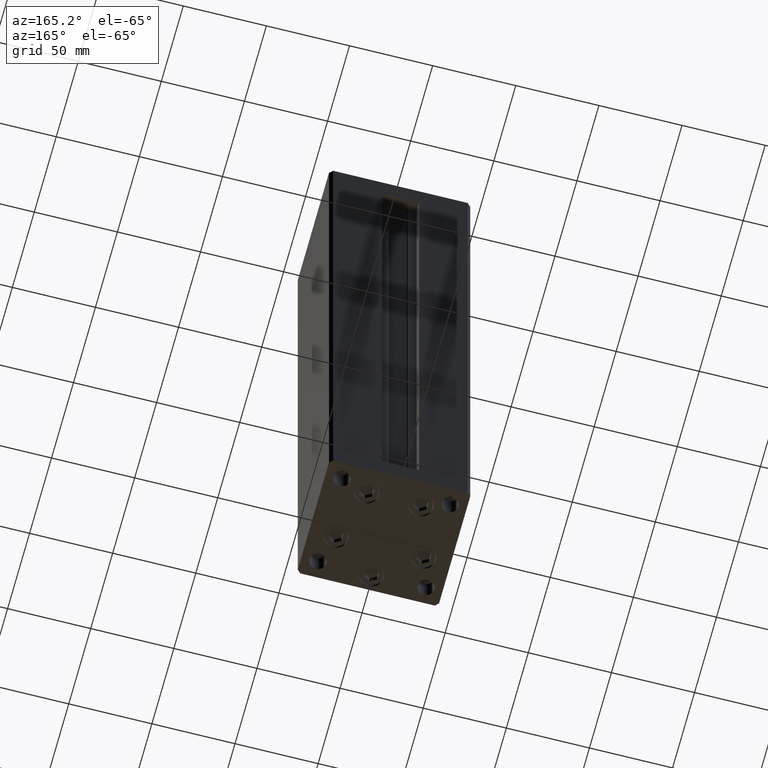
[diagram: clean part render]
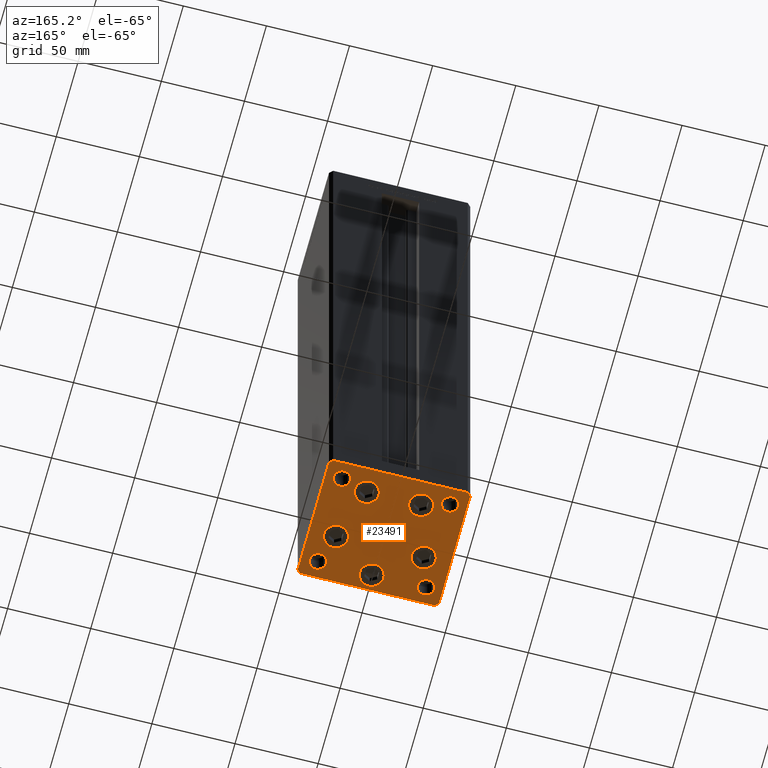
[diagram: same view with one face highlighted and labeled with its STEP entity id]
A machine part, auxiliary view. The second image highlights one B-rep face of the part: STEP entity #23491.
In plain terms, the highlighted planar face has unit normal (0, 0, -1).
Its self-contained STEP definition (entity closure, byte-faithful):
#327 = VECTOR ( 'NONE', #9192, 1000.000000000000000 ) ;
#392 = CIRCLE ( 'NONE', #16304, 4.999999999999997335 ) ;
#402 = AXIS2_PLACEMENT_3D ( 'NONE', #30157, #41130, #9442 ) ;
#839 = EDGE_CURVE ( 'NONE', #40751, #37716, #1512, .T. ) ;
#855 = VECTOR ( 'NONE', #34443, 1000.000000000000000 ) ;
#1003 = CARTESIAN_POINT ( 'NONE',  ( -32.50000000000000000, -27.49999999999999645, 0.000000000000000000 ) ) ;
#1017 = ORIENTED_EDGE ( 'NONE', *, *, #13226, .T. ) ;
#1036 = DIRECTION ( 'NONE',  ( 1.000000000000000000, 0.000000000000000000, 0.000000000000000000 ) ) ;
#1117 = ORIENTED_EDGE ( 'NONE', *, *, #31436, .T. ) ;
#1277 = VERTEX_POINT ( 'NONE', #21815 ) ;
#1512 = CIRCLE ( 'NONE', #30825, 5.000000000000000888 ) ;
#1696 = DIRECTION ( 'NONE',  ( 0.000000000000000000, -0.000000000000000000, -1.000000000000000000 ) ) ;
#2027 = CARTESIAN_POINT ( 'NONE',  ( -32.50000000000000000, 27.50000000000000355, 0.000000000000000000 ) ) ;
#2234 = CARTESIAN_POINT ( 'NONE',  ( 42.49999999999992895, 35.50000000000000000, 0.000000000000000000 ) ) ;
#2564 = FACE_OUTER_BOUND ( 'NONE', #41429, .T. ) ;
#2819 = CARTESIAN_POINT ( 'NONE',  ( 0.000000000000000000, 0.000000000000000000, 0.000000000000000000 ) ) ;
#2906 = ORIENTED_EDGE ( 'NONE', *, *, #26233, .T. ) ;
#3412 = VERTEX_POINT ( 'NONE', #48244 ) ;
#3690 = LINE ( 'NONE', #48712, #25516 ) ;
#3992 = EDGE_CURVE ( 'NONE', #11397, #3412, #21603, .T. ) ;
#4563 = CIRCLE ( 'NONE', #45583, 5.000000000000000888 ) ;
#4622 = DIRECTION ( 'NONE',  ( 0.000000000000000000, -0.000000000000000000, -1.000000000000000000 ) ) ;
#4690 = ORIENTED_EDGE ( 'NONE', *, *, #21002, .T. ) ;
#4740 = CARTESIAN_POINT ( 'NONE',  ( 40.49999999999991473, 37.50000000000000711, 0.000000000000000000 ) ) ;
#4854 = CARTESIAN_POINT ( 'NONE',  ( -9.072913342905431833, 22.74999999999999645, 0.000000000000000000 ) ) ;
#4976 = DIRECTION ( 'NONE',  ( -0.000000000000000000, 0.000000000000000000, 1.000000000000000000 ) ) ;
#5135 = CARTESIAN_POINT ( 'NONE',  ( 42.50000000000000711, -35.50000000000000000, 0.000000000000000000 ) ) ;
#5417 = EDGE_CURVE ( 'NONE', #22547, #46434, #42538, .T. ) ;
#5546 = CIRCLE ( 'NONE', #14755, 4.999999999999997335 ) ;
#5634 = DIRECTION ( 'NONE',  ( -0.7071067811865463515, -0.7071067811865487940, 0.000000000000000000 ) ) ;
#5640 = EDGE_CURVE ( 'NONE', #11532, #23768, #15746, .T. ) ;
#6636 = ORIENTED_EDGE ( 'NONE', *, *, #40804, .T. ) ;
#7062 = DIRECTION ( 'NONE',  ( 1.000000000000000000, 0.000000000000000000, 0.000000000000000000 ) ) ;
#7521 = DIRECTION ( 'NONE',  ( 1.000000000000000000, 0.000000000000000000, 0.000000000000000000 ) ) ;
#7828 = EDGE_LOOP ( 'NONE', ( #4690, #44346 ) ) ;
#7846 = DIRECTION ( 'NONE',  ( 0.000000000000000000, -0.000000000000000000, -1.000000000000000000 ) ) ;
#7997 = AXIS2_PLACEMENT_3D ( 'NONE', #25166, #49257, #9441 ) ;
#8259 = VECTOR ( 'NONE', #27490, 1000.000000000000000 ) ;
#8351 = CARTESIAN_POINT ( 'NONE',  ( 40.50000000000000000, -37.50000000000000711, 0.000000000000000000 ) ) ;
#8777 = CARTESIAN_POINT ( 'NONE',  ( -40.50000000000000711, 37.49999999999997868, 0.000000000000000000 ) ) ;
#9192 = DIRECTION ( 'NONE',  ( -1.000000000000000000, -3.426614273534436165E-16, 0.000000000000000000 ) ) ;
#9237 = AXIS2_PLACEMENT_3D ( 'NONE', #45291, #40596, #1036 ) ;
#9441 = DIRECTION ( 'NONE',  ( 1.000000000000000000, 0.000000000000000000, 0.000000000000000000 ) ) ;
#9442 = DIRECTION ( 'NONE',  ( 1.000000000000000000, 0.000000000000000000, 0.000000000000000000 ) ) ;
#9542 = CARTESIAN_POINT ( 'NONE',  ( 32.50000000000000000, -27.49999999999999645, 0.000000000000000000 ) ) ;
#9746 = VERTEX_POINT ( 'NONE', #5135 ) ;
#10038 = ORIENTED_EDGE ( 'NONE', *, *, #48197, .T. ) ;
#10421 = DIRECTION ( 'NONE',  ( -0.000000000000000000, 0.000000000000000000, 1.000000000000000000 ) ) ;
#10730 = VERTEX_POINT ( 'NONE', #21196 ) ;
#11340 = EDGE_CURVE ( 'NONE', #9746, #46159, #35217, .T. ) ;
#11397 = VERTEX_POINT ( 'NONE', #16037 ) ;
#11452 = FACE_BOUND ( 'NONE', #50827, .T. ) ;
#11495 = CARTESIAN_POINT ( 'NONE',  ( -42.50000000000000000, -35.50000000000000711, 0.000000000000000000 ) ) ;
#11532 = VERTEX_POINT ( 'NONE', #33861 ) ;
#11964 = ORIENTED_EDGE ( 'NONE', *, *, #25533, .T. ) ;
#12188 = CIRCLE ( 'NONE', #7997, 7.249999999999999112 ) ;
#12677 = ORIENTED_EDGE ( 'NONE', *, *, #31529, .F. ) ;
#12859 = CARTESIAN_POINT ( 'NONE',  ( 33.64865316429776954, -9.333333333333328596, 0.000000000000000000 ) ) ;
#12879 = CIRCLE ( 'NONE', #22085, 5.000000000000000888 ) ;
#13075 = DIRECTION ( 'NONE',  ( 1.000000000000000000, 0.000000000000000000, 0.000000000000000000 ) ) ;
#13089 = DIRECTION ( 'NONE',  ( 1.000000000000000000, 0.000000000000000000, 0.000000000000000000 ) ) ;
#13226 = EDGE_CURVE ( 'NONE', #35607, #1277, #20986, .T. ) ;
#13741 = DIRECTION ( 'NONE',  ( 1.000000000000000000, 0.000000000000000000, 0.000000000000000000 ) ) ;
#13886 = CIRCLE ( 'NONE', #21431, 5.000000000000000888 ) ;
#13986 = EDGE_LOOP ( 'NONE', ( #6636, #31578 ) ) ;
#14351 = FACE_BOUND ( 'NONE', #41396, .T. ) ;
#14755 = AXIS2_PLACEMENT_3D ( 'NONE', #48163, #7846, #47404 ) ;
#15248 = CARTESIAN_POINT ( 'NONE',  ( -32.50000000000000000, -27.49999999999999645, 0.000000000000000000 ) ) ;
#15297 = AXIS2_PLACEMENT_3D ( 'NONE', #2819, #10421, #7521 ) ;
#15718 = AXIS2_PLACEMENT_3D ( 'NONE', #33019, #33541, #13089 ) ;
#15746 = CIRCLE ( 'NONE', #17443, 7.250000000000000000 ) ;
#16037 = CARTESIAN_POINT ( 'NONE',  ( 27.50000000000000355, 27.49999999999999645, 0.000000000000000000 ) ) ;
#16304 = AXIS2_PLACEMENT_3D ( 'NONE', #40851, #4976, #29098 ) ;
#16652 = VERTEX_POINT ( 'NONE', #39663 ) ;
#16929 = ORIENTED_EDGE ( 'NONE', *, *, #19296, .T. ) ;
#17014 = ORIENTED_EDGE ( 'NONE', *, *, #43050, .T. ) ;
#17042 = EDGE_LOOP ( 'NONE', ( #26607, #50432 ) ) ;
#17146 = DIRECTION ( 'NONE',  ( 0.000000000000000000, -0.000000000000000000, -1.000000000000000000 ) ) ;
#17443 = AXIS2_PLACEMENT_3D ( 'NONE', #34213, #30533, #42554 ) ;
#17981 = CARTESIAN_POINT ( 'NONE',  ( 40.49999999999991473, 37.50000000000000711, 0.000000000000000000 ) ) ;
#18004 = AXIS2_PLACEMENT_3D ( 'NONE', #44185, #1696, #21865 ) ;
#18080 = VERTEX_POINT ( 'NONE', #19812 ) ;
#18423 = EDGE_LOOP ( 'NONE', ( #17014, #44348 ) ) ;
#18528 = DIRECTION ( 'NONE',  ( 1.000000000000000000, 0.000000000000000000, 0.000000000000000000 ) ) ;
#18861 = CARTESIAN_POINT ( 'NONE',  ( 23.57291334290542295, 22.75000000000000000, 0.000000000000000000 ) ) ;
#19296 = EDGE_CURVE ( 'NONE', #23768, #11532, #47929, .T. ) ;
#19436 = DIRECTION ( 'NONE',  ( 1.000000000000000000, 1.713307136767217096E-16, 0.000000000000000000 ) ) ;
#19626 = ORIENTED_EDGE ( 'NONE', *, *, #5417, .T. ) ;
#19673 = DIRECTION ( 'NONE',  ( 9.773090005503140331E-17, -1.000000000000000000, 0.000000000000000000 ) ) ;
#19812 = CARTESIAN_POINT ( 'NONE',  ( -40.49999999999999289, -37.50000000000002132, 0.000000000000000000 ) ) ;
#19823 = AXIS2_PLACEMENT_3D ( 'NONE', #40511, #4622, #20611 ) ;
#19901 = VERTEX_POINT ( 'NONE', #17981 ) ;
#20611 = DIRECTION ( 'NONE',  ( 1.000000000000000000, 0.000000000000000000, 0.000000000000000000 ) ) ;
#20986 = CIRCLE ( 'NONE', #9237, 7.249999999999999112 ) ;
#21002 = EDGE_CURVE ( 'NONE', #42105, #47296, #44476, .T. ) ;
#21196 = CARTESIAN_POINT ( 'NONE',  ( -37.50000000000000711, -27.49999999999999645, 0.000000000000000000 ) ) ;
#21431 = AXIS2_PLACEMENT_3D ( 'NONE', #1003, #48945, #13075 ) ;
#21460 = ORIENTED_EDGE ( 'NONE', *, *, #31640, .T. ) ;
#21603 = CIRCLE ( 'NONE', #15718, 4.999999999999997335 ) ;
#21815 = CARTESIAN_POINT ( 'NONE',  ( -23.57291334290543006, 22.74999999999999645, 0.000000000000000000 ) ) ;
#21865 = DIRECTION ( 'NONE',  ( 1.000000000000000000, 0.000000000000000000, 0.000000000000000000 ) ) ;
#22085 = AXIS2_PLACEMENT_3D ( 'NONE', #51695, #36263, #31057 ) ;
#22230 = VECTOR ( 'NONE', #19436, 1000.000000000000000 ) ;
#22470 = FACE_BOUND ( 'NONE', #45253, .T. ) ;
#22547 = VERTEX_POINT ( 'NONE', #26369 ) ;
#23234 = PLANE ( 'NONE',  #15297 ) ;
#23491 = ADVANCED_FACE ( 'NONE', ( #22470, #43396, #50236, #42629, #11452, #14351, #35060, #42373, #2564, #30867 ), #23234, .T. ) ;
#23570 = EDGE_CURVE ( 'NONE', #29965, #9746, #43643, .T. ) ;
#23768 = VERTEX_POINT ( 'NONE', #39357 ) ;
#24554 = AXIS2_PLACEMENT_3D ( 'NONE', #35021, #46780, #47540 ) ;
#24643 = CIRCLE ( 'NONE', #402, 7.249999999999999112 ) ;
#24881 = CARTESIAN_POINT ( 'NONE',  ( 27.50000000000000355, -27.49999999999999645, 0.000000000000000000 ) ) ;
#25166 = CARTESIAN_POINT ( 'NONE',  ( -26.39865316429776954, -9.333333333333337478, 0.000000000000000000 ) ) ;
#25356 = AXIS2_PLACEMENT_3D ( 'NONE', #9542, #17146, #13741 ) ;
#25516 = VECTOR ( 'NONE', #19673, 1000.000000000000000 ) ;
#25533 = EDGE_CURVE ( 'NONE', #42830, #31528, #37084, .T. ) ;
#26213 = CARTESIAN_POINT ( 'NONE',  ( 19.14865316429777309, -9.333333333333330373, 0.000000000000000000 ) ) ;
#26233 = EDGE_CURVE ( 'NONE', #1277, #35607, #38805, .T. ) ;
#26301 = ORIENTED_EDGE ( 'NONE', *, *, #38253, .T. ) ;
#26369 = CARTESIAN_POINT ( 'NONE',  ( -19.14865316429777309, -9.333333333333335702, 0.000000000000000000 ) ) ;
#26607 = ORIENTED_EDGE ( 'NONE', *, *, #839, .F. ) ;
#26706 = ORIENTED_EDGE ( 'NONE', *, *, #48263, .T. ) ;
#27490 = DIRECTION ( 'NONE',  ( 0.7071067811865463515, -0.7071067811865487940, 0.000000000000000000 ) ) ;
#27654 = CARTESIAN_POINT ( 'NONE',  ( 9.072913342905424727, 22.75000000000000000, 0.000000000000000000 ) ) ;
#28355 = ORIENTED_EDGE ( 'NONE', *, *, #11340, .T. ) ;
#28632 = VECTOR ( 'NONE', #30787, 1000.000000000000114 ) ;
#29098 = DIRECTION ( 'NONE',  ( 1.000000000000000000, 0.000000000000000000, 0.000000000000000000 ) ) ;
#29511 = CARTESIAN_POINT ( 'NONE',  ( -40.50000000000000711, 37.49999999999997868, 0.000000000000000000 ) ) ;
#29953 = VERTEX_POINT ( 'NONE', #44226 ) ;
#29965 = VERTEX_POINT ( 'NONE', #8351 ) ;
#30010 = ORIENTED_EDGE ( 'NONE', *, *, #32272, .T. ) ;
#30127 = CARTESIAN_POINT ( 'NONE',  ( 37.50000000000000000, -27.49999999999999645, 0.000000000000000000 ) ) ;
#30157 = CARTESIAN_POINT ( 'NONE',  ( 26.39865316429776954, -9.333333333333330373, 0.000000000000000000 ) ) ;
#30533 = DIRECTION ( 'NONE',  ( 0.000000000000000000, -0.000000000000000000, -1.000000000000000000 ) ) ;
#30787 = DIRECTION ( 'NONE',  ( -0.7071067811865474617, 0.7071067811865474617, 0.000000000000000000 ) ) ;
#30825 = AXIS2_PLACEMENT_3D ( 'NONE', #2027, #42092, #18528 ) ;
#30846 = AXIS2_PLACEMENT_3D ( 'NONE', #35356, #39026, #7062 ) ;
#30867 = FACE_BOUND ( 'NONE', #13986, .T. ) ;
#31057 = DIRECTION ( 'NONE',  ( 1.000000000000000000, 0.000000000000000000, 0.000000000000000000 ) ) ;
#31436 = EDGE_CURVE ( 'NONE', #16652, #33326, #3690, .T. ) ;
#31528 = VERTEX_POINT ( 'NONE', #24881 ) ;
#31529 = EDGE_CURVE ( 'NONE', #3412, #11397, #392, .T. ) ;
#31578 = ORIENTED_EDGE ( 'NONE', *, *, #49540, .T. ) ;
#31640 = EDGE_CURVE ( 'NONE', #33326, #18080, #40537, .T. ) ;
#32272 = EDGE_CURVE ( 'NONE', #46159, #19901, #34729, .T. ) ;
#32600 = CARTESIAN_POINT ( 'NONE',  ( -42.50000000000000000, -35.50000000000000711, 0.000000000000000000 ) ) ;
#33019 = CARTESIAN_POINT ( 'NONE',  ( 32.50000000000000000, 27.49999999999999645, 0.000000000000000000 ) ) ;
#33096 = CIRCLE ( 'NONE', #18004, 7.249999999999999112 ) ;
#33326 = VERTEX_POINT ( 'NONE', #32600 ) ;
#33388 = DIRECTION ( 'NONE',  ( 0.7071067811865474617, 0.7071067811865474617, 0.000000000000000000 ) ) ;
#33433 = LINE ( 'NONE', #8777, #39540 ) ;
#33541 = DIRECTION ( 'NONE',  ( -0.000000000000000000, 0.000000000000000000, 1.000000000000000000 ) ) ;
#33659 = AXIS2_PLACEMENT_3D ( 'NONE', #40618, #36194, #40870 ) ;
#33861 = CARTESIAN_POINT ( 'NONE',  ( 7.250000000000003553, -28.00000000000000000, 0.000000000000000000 ) ) ;
#34213 = CARTESIAN_POINT ( 'NONE',  ( 3.429011037612589276E-15, -28.00000000000000000, 0.000000000000000000 ) ) ;
#34443 = DIRECTION ( 'NONE',  ( -1.172770800660376741E-15, 1.000000000000000000, 0.000000000000000000 ) ) ;
#34690 = DIRECTION ( 'NONE',  ( 0.000000000000000000, -0.000000000000000000, -1.000000000000000000 ) ) ;
#34729 = LINE ( 'NONE', #2234, #28632 ) ;
#34772 = EDGE_CURVE ( 'NONE', #37492, #16652, #33433, .T. ) ;
#34965 = CARTESIAN_POINT ( 'NONE',  ( 42.49999999999992895, 35.50000000000000000, 0.000000000000000000 ) ) ;
#35021 = CARTESIAN_POINT ( 'NONE',  ( -16.32291334290543006, 22.74999999999999645, 0.000000000000000000 ) ) ;
#35060 = FACE_BOUND ( 'NONE', #38980, .T. ) ;
#35143 = VERTEX_POINT ( 'NONE', #26213 ) ;
#35217 = LINE ( 'NONE', #47230, #855 ) ;
#35356 = CARTESIAN_POINT ( 'NONE',  ( -26.39865316429776954, -9.333333333333337478, 0.000000000000000000 ) ) ;
#35607 = VERTEX_POINT ( 'NONE', #4854 ) ;
#36194 = DIRECTION ( 'NONE',  ( 0.000000000000000000, -0.000000000000000000, -1.000000000000000000 ) ) ;
#36263 = DIRECTION ( 'NONE',  ( -0.000000000000000000, 0.000000000000000000, 1.000000000000000000 ) ) ;
#37084 = CIRCLE ( 'NONE', #25356, 4.999999999999997335 ) ;
#37492 = VERTEX_POINT ( 'NONE', #29511 ) ;
#37716 = VERTEX_POINT ( 'NONE', #50174 ) ;
#37831 = EDGE_CURVE ( 'NONE', #37716, #40751, #12879, .T. ) ;
#38253 = EDGE_CURVE ( 'NONE', #19901, #37492, #40627, .T. ) ;
#38337 = DIRECTION ( 'NONE',  ( 0.000000000000000000, -0.000000000000000000, -1.000000000000000000 ) ) ;
#38350 = DIRECTION ( 'NONE',  ( 1.000000000000000000, 0.000000000000000000, 0.000000000000000000 ) ) ;
#38804 = ORIENTED_EDGE ( 'NONE', *, *, #49411, .T. ) ;
#38805 = CIRCLE ( 'NONE', #24554, 7.249999999999999112 ) ;
#38857 = EDGE_LOOP ( 'NONE', ( #16929, #39266 ) ) ;
#38980 = EDGE_LOOP ( 'NONE', ( #11964, #38804 ) ) ;
#39026 = DIRECTION ( 'NONE',  ( 0.000000000000000000, -0.000000000000000000, -1.000000000000000000 ) ) ;
#39090 = ORIENTED_EDGE ( 'NONE', *, *, #34772, .T. ) ;
#39266 = ORIENTED_EDGE ( 'NONE', *, *, #5640, .T. ) ;
#39357 = CARTESIAN_POINT ( 'NONE',  ( -7.249999999999997335, -28.00000000000000000, 0.000000000000000000 ) ) ;
#39540 = VECTOR ( 'NONE', #5634, 1000.000000000000000 ) ;
#39663 = CARTESIAN_POINT ( 'NONE',  ( -42.50000000000000711, 35.49999999999997158, 0.000000000000000000 ) ) ;
#39803 = CARTESIAN_POINT ( 'NONE',  ( 3.429011037612589276E-15, -28.00000000000000000, 0.000000000000000000 ) ) ;
#40511 = CARTESIAN_POINT ( 'NONE',  ( 16.32291334290542295, 22.75000000000000000, 0.000000000000000000 ) ) ;
#40537 = LINE ( 'NONE', #11495, #8259 ) ;
#40596 = DIRECTION ( 'NONE',  ( 0.000000000000000000, -0.000000000000000000, -1.000000000000000000 ) ) ;
#40618 = CARTESIAN_POINT ( 'NONE',  ( 16.32291334290542295, 22.75000000000000000, 0.000000000000000000 ) ) ;
#40627 = LINE ( 'NONE', #4740, #327 ) ;
#40751 = VERTEX_POINT ( 'NONE', #50106 ) ;
#40804 = EDGE_CURVE ( 'NONE', #29953, #10730, #4563, .T. ) ;
#40851 = CARTESIAN_POINT ( 'NONE',  ( 32.50000000000000000, 27.49999999999999645, 0.000000000000000000 ) ) ;
#40870 = DIRECTION ( 'NONE',  ( 1.000000000000000000, 0.000000000000000000, 0.000000000000000000 ) ) ;
#40897 = EDGE_CURVE ( 'NONE', #48308, #35143, #24643, .T. ) ;
#41041 = ORIENTED_EDGE ( 'NONE', *, *, #23570, .T. ) ;
#41130 = DIRECTION ( 'NONE',  ( 0.000000000000000000, -0.000000000000000000, -1.000000000000000000 ) ) ;
#41396 = EDGE_LOOP ( 'NONE', ( #12677, #46603 ) ) ;
#41429 = EDGE_LOOP ( 'NONE', ( #21460, #10038, #41041, #28355, #30010, #26301, #39090, #1117 ) ) ;
#42092 = DIRECTION ( 'NONE',  ( -0.000000000000000000, 0.000000000000000000, 1.000000000000000000 ) ) ;
#42105 = VERTEX_POINT ( 'NONE', #27654 ) ;
#42373 = FACE_BOUND ( 'NONE', #17042, .T. ) ;
#42413 = CIRCLE ( 'NONE', #19823, 7.249999999999999112 ) ;
#42538 = CIRCLE ( 'NONE', #30846, 7.249999999999999112 ) ;
#42554 = DIRECTION ( 'NONE',  ( 1.000000000000000000, 0.000000000000000000, 0.000000000000000000 ) ) ;
#42629 = FACE_BOUND ( 'NONE', #38857, .T. ) ;
#42830 = VERTEX_POINT ( 'NONE', #30127 ) ;
#43050 = EDGE_CURVE ( 'NONE', #35143, #48308, #33096, .T. ) ;
#43396 = FACE_BOUND ( 'NONE', #7828, .T. ) ;
#43643 = LINE ( 'NONE', #48542, #47880 ) ;
#44028 = LINE ( 'NONE', #44280, #22230 ) ;
#44185 = CARTESIAN_POINT ( 'NONE',  ( 26.39865316429776954, -9.333333333333330373, 0.000000000000000000 ) ) ;
#44226 = CARTESIAN_POINT ( 'NONE',  ( -27.50000000000000000, -27.49999999999999645, 0.000000000000000000 ) ) ;
#44280 = CARTESIAN_POINT ( 'NONE',  ( -40.49999999999999289, -37.50000000000002132, 0.000000000000000000 ) ) ;
#44346 = ORIENTED_EDGE ( 'NONE', *, *, #51704, .T. ) ;
#44348 = ORIENTED_EDGE ( 'NONE', *, *, #40897, .T. ) ;
#44476 = CIRCLE ( 'NONE', #33659, 7.249999999999999112 ) ;
#45253 = EDGE_LOOP ( 'NONE', ( #2906, #1017 ) ) ;
#45291 = CARTESIAN_POINT ( 'NONE',  ( -16.32291334290543006, 22.74999999999999645, 0.000000000000000000 ) ) ;
#45583 = AXIS2_PLACEMENT_3D ( 'NONE', #15248, #38337, #50359 ) ;
#46159 = VERTEX_POINT ( 'NONE', #34965 ) ;
#46434 = VERTEX_POINT ( 'NONE', #51603 ) ;
#46603 = ORIENTED_EDGE ( 'NONE', *, *, #3992, .F. ) ;
#46780 = DIRECTION ( 'NONE',  ( 0.000000000000000000, -0.000000000000000000, -1.000000000000000000 ) ) ;
#47086 = AXIS2_PLACEMENT_3D ( 'NONE', #39803, #34690, #38350 ) ;
#47230 = CARTESIAN_POINT ( 'NONE',  ( 42.50000000000000711, -35.50000000000000000, 0.000000000000000000 ) ) ;
#47296 = VERTEX_POINT ( 'NONE', #18861 ) ;
#47404 = DIRECTION ( 'NONE',  ( 1.000000000000000000, 0.000000000000000000, 0.000000000000000000 ) ) ;
#47540 = DIRECTION ( 'NONE',  ( 1.000000000000000000, 0.000000000000000000, 0.000000000000000000 ) ) ;
#47880 = VECTOR ( 'NONE', #33388, 1000.000000000000114 ) ;
#47929 = CIRCLE ( 'NONE', #47086, 7.250000000000000000 ) ;
#48163 = CARTESIAN_POINT ( 'NONE',  ( 32.50000000000000000, -27.49999999999999645, 0.000000000000000000 ) ) ;
#48197 = EDGE_CURVE ( 'NONE', #18080, #29965, #44028, .T. ) ;
#48244 = CARTESIAN_POINT ( 'NONE',  ( 37.50000000000000000, 27.49999999999999645, 0.000000000000000000 ) ) ;
#48263 = EDGE_CURVE ( 'NONE', #46434, #22547, #12188, .T. ) ;
#48308 = VERTEX_POINT ( 'NONE', #12859 ) ;
#48542 = CARTESIAN_POINT ( 'NONE',  ( 40.50000000000000000, -37.50000000000000711, 0.000000000000000000 ) ) ;
#48712 = CARTESIAN_POINT ( 'NONE',  ( -42.50000000000000711, 35.49999999999997158, 0.000000000000000000 ) ) ;
#48945 = DIRECTION ( 'NONE',  ( 0.000000000000000000, -0.000000000000000000, -1.000000000000000000 ) ) ;
#49257 = DIRECTION ( 'NONE',  ( 0.000000000000000000, -0.000000000000000000, -1.000000000000000000 ) ) ;
#49411 = EDGE_CURVE ( 'NONE', #31528, #42830, #5546, .T. ) ;
#49540 = EDGE_CURVE ( 'NONE', #10730, #29953, #13886, .T. ) ;
#50106 = CARTESIAN_POINT ( 'NONE',  ( -27.50000000000000000, 27.50000000000000355, 0.000000000000000000 ) ) ;
#50174 = CARTESIAN_POINT ( 'NONE',  ( -37.50000000000000711, 27.50000000000000355, 0.000000000000000000 ) ) ;
#50236 = FACE_BOUND ( 'NONE', #18423, .T. ) ;
#50359 = DIRECTION ( 'NONE',  ( 1.000000000000000000, 0.000000000000000000, 0.000000000000000000 ) ) ;
#50432 = ORIENTED_EDGE ( 'NONE', *, *, #37831, .F. ) ;
#50827 = EDGE_LOOP ( 'NONE', ( #26706, #19626 ) ) ;
#51603 = CARTESIAN_POINT ( 'NONE',  ( -33.64865316429776954, -9.333333333333337478, 0.000000000000000000 ) ) ;
#51695 = CARTESIAN_POINT ( 'NONE',  ( -32.50000000000000000, 27.50000000000000355, 0.000000000000000000 ) ) ;
#51704 = EDGE_CURVE ( 'NONE', #47296, #42105, #42413, .T. ) ;